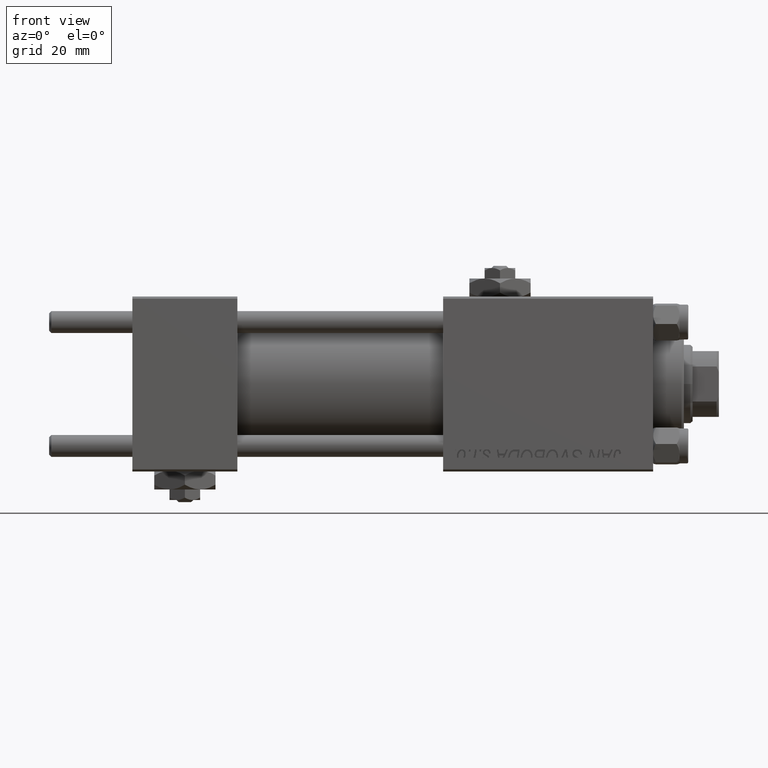
[diagram: clean part render]
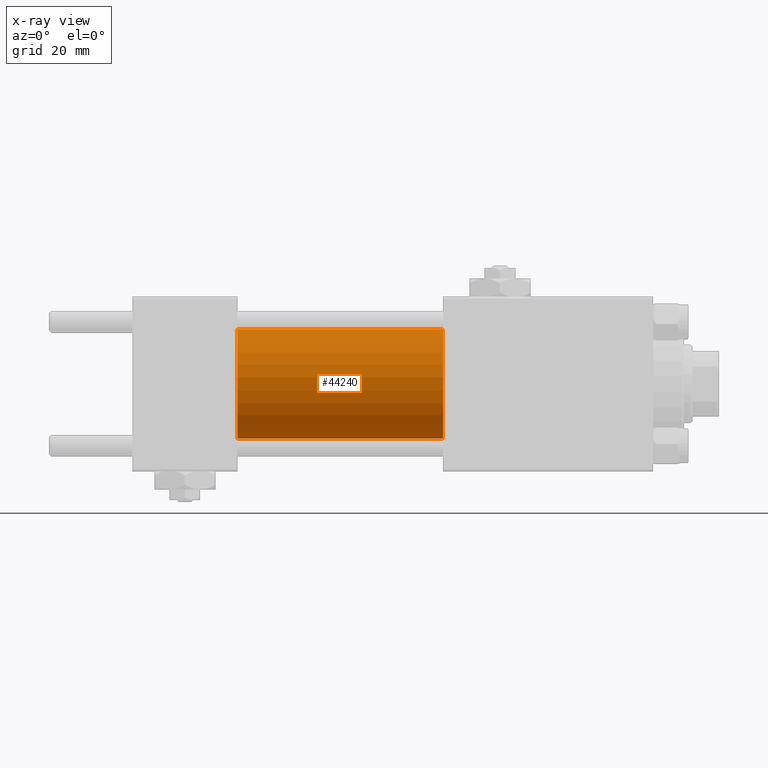
[diagram: x-ray — body ghosted, one internal face saturated and labeled with its STEP entity id]
A machine part, front view, then the same camera in x-ray: the body is ghosted and one INTERNAL B-rep face — a face not visible from any outside direction — is saturated and labeled: STEP entity #44240.
In plain terms, the highlighted cylindrical surface (partial cylindrical patch) has radius 12.5 mm, axis along (-1, -0, -0).
Its self-contained STEP definition (entity closure, byte-faithful):
#1076 = CARTESIAN_POINT ( 'NONE',  ( 71.00000000000001421, 0.000000000000000000, 12.49999999999999645 ) ) ;
#2980 = CIRCLE ( 'NONE', #47405, 12.49999999999999645 ) ;
#3064 = DIRECTION ( 'NONE',  ( -1.000000000000000000, -0.000000000000000000, -0.000000000000000000 ) ) ;
#4057 = VERTEX_POINT ( 'NONE', #22122 ) ;
#4719 = LINE ( 'NONE', #45130, #10919 ) ;
#6310 = EDGE_CURVE ( 'NONE', #48466, #4057, #20215, .T. ) ;
#6624 = EDGE_CURVE ( 'NONE', #11345, #23838, #2980, .T. ) ;
#7010 = DIRECTION ( 'NONE',  ( 0.000000000000000000, 0.000000000000000000, -1.000000000000000000 ) ) ;
#10223 = AXIS2_PLACEMENT_3D ( 'NONE', #45295, #13277, #29284 ) ;
#10919 = VECTOR ( 'NONE', #24659, 1000.000000000000000 ) ;
#11345 = VERTEX_POINT ( 'NONE', #17135 ) ;
#12172 = ORIENTED_EDGE ( 'NONE', *, *, #41166, .T. ) ;
#12472 = ORIENTED_EDGE ( 'NONE', *, *, #6310, .T. ) ;
#13277 = DIRECTION ( 'NONE',  ( -1.000000000000000000, -0.000000000000000000, -0.000000000000000000 ) ) ;
#13532 = CARTESIAN_POINT ( 'NONE',  ( 24.00000000000000000, 0.000000000000000000, 0.000000000000000000 ) ) ;
#17135 = CARTESIAN_POINT ( 'NONE',  ( 24.00000000000000000, 0.000000000000000000, 12.49999999999999645 ) ) ;
#20215 = CIRCLE ( 'NONE', #49460, 12.49999999999999645 ) ;
#22122 = CARTESIAN_POINT ( 'NONE',  ( 71.00000000000001421, 1.530808498934191127E-15, -12.49999999999999645 ) ) ;
#22746 = CARTESIAN_POINT ( 'NONE',  ( 71.00000000000001421, 0.000000000000000000, 12.49999999999999645 ) ) ;
#23838 = VERTEX_POINT ( 'NONE', #27144 ) ;
#24659 = DIRECTION ( 'NONE',  ( -1.000000000000000000, -0.000000000000000000, -0.000000000000000000 ) ) ;
#26672 = LINE ( 'NONE', #22746, #41874 ) ;
#27144 = CARTESIAN_POINT ( 'NONE',  ( 24.00000000000000000, 1.530808498934191127E-15, -12.49999999999999645 ) ) ;
#29284 = DIRECTION ( 'NONE',  ( 0.000000000000000000, 0.000000000000000000, 1.000000000000000000 ) ) ;
#29539 = DIRECTION ( 'NONE',  ( 0.000000000000000000, 0.000000000000000000, -1.000000000000000000 ) ) ;
#29790 = DIRECTION ( 'NONE',  ( 1.000000000000000000, 0.000000000000000000, 0.000000000000000000 ) ) ;
#33218 = FACE_OUTER_BOUND ( 'NONE', #47248, .T. ) ;
#39016 = EDGE_CURVE ( 'NONE', #48466, #11345, #26672, .T. ) ;
#41166 = EDGE_CURVE ( 'NONE', #4057, #23838, #4719, .T. ) ;
#41874 = VECTOR ( 'NONE', #3064, 1000.000000000000000 ) ;
#42832 = ORIENTED_EDGE ( 'NONE', *, *, #39016, .F. ) ;
#43444 = DIRECTION ( 'NONE',  ( 1.000000000000000000, 0.000000000000000000, 0.000000000000000000 ) ) ;
#44240 = ADVANCED_FACE ( 'NONE', ( #33218 ), #49241, .F. ) ;
#45130 = CARTESIAN_POINT ( 'NONE',  ( 71.00000000000001421, 1.530808498934191127E-15, -12.49999999999999645 ) ) ;
#45295 = CARTESIAN_POINT ( 'NONE',  ( 71.00000000000001421, 0.000000000000000000, 0.000000000000000000 ) ) ;
#47248 = EDGE_LOOP ( 'NONE', ( #12472, #12172, #51235, #42832 ) ) ;
#47405 = AXIS2_PLACEMENT_3D ( 'NONE', #13532, #29790, #29539 ) ;
#48466 = VERTEX_POINT ( 'NONE', #1076 ) ;
#49241 = CYLINDRICAL_SURFACE ( 'NONE', #10223, 12.49999999999999645 ) ;
#49460 = AXIS2_PLACEMENT_3D ( 'NONE', #51343, #43444, #7010 ) ;
#51235 = ORIENTED_EDGE ( 'NONE', *, *, #6624, .F. ) ;
#51343 = CARTESIAN_POINT ( 'NONE',  ( 71.00000000000001421, 0.000000000000000000, 0.000000000000000000 ) ) ;